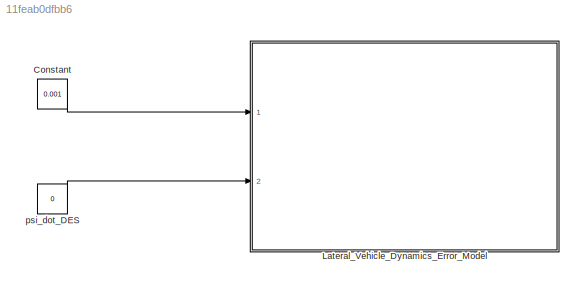
MODEL slx_11feab0dfbb6
KIND model
CONFIG AbsTol = auto
CONFIG EnableMultiTasking = off
CONFIG FixedStep = 0.01
CONFIG MaxStep = auto
CONFIG MinStep = auto
CONFIG RelTol = 1e-3
CONFIG SampleTimeConstraint = Unconstrained
CONFIG Solver = FixedStepAuto
CONFIG SolverName = FixedStepAuto
CONFIG StartTime = 0.0
CONFIG StopTime = 1000
BLOCK [Constant] Constant
  Value = 0.001
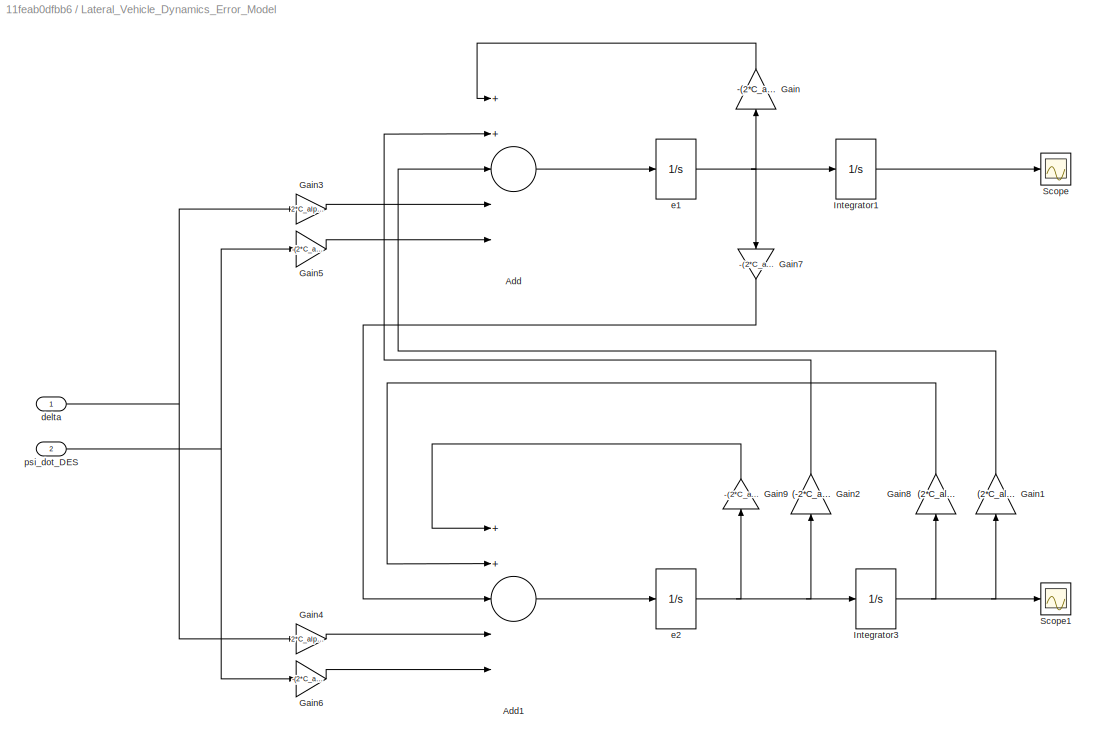
BLOCK [SubSystem] Lateral_Vehicle_Dynamics_Error_Model
  Ports = [2]
  RequestExecContextInheritance = off
BLOCK [Sum] Lateral_Vehicle_Dynamics_Error_Model/Add
  InputSameDT = off
  Inputs = 5
  OutDataTypeStr = Inherit: Inherit via internal rule
  Ports = [5, 1]
  SaturateOnIntegerOverflow = off
BLOCK [Sum] Lateral_Vehicle_Dynamics_Error_Model/Add1
  InputSameDT = off
  Inputs = 5
  OutDataTypeStr = Inherit: Inherit via internal rule
  Ports = [5, 1]
  SaturateOnIntegerOverflow = off
BLOCK [Gain] Lateral_Vehicle_Dynamics_Error_Model/Gain
  Gain = -(2*C_alpha_f + 2*C_alpha_r)/(m*Vx)
  OutDataTypeStr = Inherit: Inherit via internal rule
  ParamDataTypeStr = Inherit: Inherit via internal rule
  SaturateOnIntegerOverflow = off
BLOCK [Gain] Lateral_Vehicle_Dynamics_Error_Model/Gain1
  Gain = (2*C_alpha_f + 2*C_alpha_r)/(m)
  OutDataTypeStr = Inherit: Inherit via internal rule
  ParamDataTypeStr = Inherit: Inherit via internal rule
  SaturateOnIntegerOverflow = off
BLOCK [Gain] Lateral_Vehicle_Dynamics_Error_Model/Gain2
  Gain = (-2*C_alpha_f*l_f + 2*C_alpha_r*l_r)/(m*Vx)
  OutDataTypeStr = Inherit: Inherit via internal rule
  ParamDataTypeStr = Inherit: Inherit via internal rule
  SaturateOnIntegerOverflow = off
BLOCK [Gain] Lateral_Vehicle_Dynamics_Error_Model/Gain3
  Gain = 2*C_alpha_f/m
  OutDataTypeStr = Inherit: Inherit via internal rule
  ParamDataTypeStr = Inherit: Inherit via internal rule
  SaturateOnIntegerOverflow = off
BLOCK [Gain] Lateral_Vehicle_Dynamics_Error_Model/Gain4
  Gain = 2*C_alpha_f*l_f/Izz
  OutDataTypeStr = Inherit: Inherit via internal rule
  ParamDataTypeStr = Inherit: Inherit via internal rule
  SaturateOnIntegerOverflow = off
BLOCK [Gain] Lateral_Vehicle_Dynamics_Error_Model/Gain5
  Gain = -(2*C_alpha_f *l_f - 2*C_alpha_r*l_r)/(m*Vx) - Vx
  OutDataTypeStr = Inherit: Inherit via internal rule
  ParamDataTypeStr = Inherit: Inherit via internal rule
  SaturateOnIntegerOverflow = off
BLOCK [Gain] Lateral_Vehicle_Dynamics_Error_Model/Gain6
  Gain = -(2*C_alpha_f *l_f*l_f+ 2*C_alpha_r*l_r*l_r)/(Izz*Vx)
  OutDataTypeStr = Inherit: Inherit via internal rule
  ParamDataTypeStr = Inherit: Inherit via internal rule
  SaturateOnIntegerOverflow = off
BLOCK [Gain] Lateral_Vehicle_Dynamics_Error_Model/Gain7
  Gain = -(2*C_alpha_f *l_f - 2*C_alpha_r*l_r)/(Izz*Vx)
  OutDataTypeStr = Inherit: Inherit via internal rule
  ParamDataTypeStr = Inherit: Inherit via internal rule
  SaturateOnIntegerOverflow = off
BLOCK [Gain] Lateral_Vehicle_Dynamics_Error_Model/Gain8
  Gain = (2*C_alpha_f*l_f - 2*C_alpha_r*l_r)/(Izz)
  OutDataTypeStr = Inherit: Inherit via internal rule
  ParamDataTypeStr = Inherit: Inherit via internal rule
  SaturateOnIntegerOverflow = off
BLOCK [Gain] Lateral_Vehicle_Dynamics_Error_Model/Gain9
  Gain = -(2*C_alpha_f *l_f*l_f+ 2*C_alpha_r*l_r*l_r)/(Izz*Vx)
  OutDataTypeStr = Inherit: Inherit via internal rule
  ParamDataTypeStr = Inherit: Inherit via internal rule
  SaturateOnIntegerOverflow = off
BLOCK [Integrator] Lateral_Vehicle_Dynamics_Error_Model/Integrator1
  Ports = [1, 1]
BLOCK [Integrator] Lateral_Vehicle_Dynamics_Error_Model/Integrator3
  Ports = [1, 1]
BLOCK [Scope] Lateral_Vehicle_Dynamics_Error_Model/Scope
  Floating = off
  NumInputPorts = 1
  Ports = [1]
  ScopeSpecificationString = Simulink.scopes.TimeScopeBlockCfg('CurrentConfiguration', extmgr.ConfigurationSet(extmgr.Configuration('Core','General UI',true),extmgr.Configuration('Core','Source UI',true),extmgr.Configuration('Sources','WiredSimulink',true),extmgr.Configuration('Visuals','Time Domain',true,'SerializedDisplays',{struct('MinYLimReal','-0.0007','MaxYLimReal','0.00026','YLabelReal','','MinYLimMag','0.00000','MaxYL...<+1411ch>
BLOCK [Scope] Lateral_Vehicle_Dynamics_Error_Model/Scope1
  Floating = off
  NumInputPorts = 1
  Ports = [1]
  ScopeSpecificationString = Simulink.scopes.TimeScopeBlockCfg('CurrentConfiguration', extmgr.ConfigurationSet(extmgr.Configuration('Core','General UI',true),extmgr.Configuration('Core','Source UI',true),extmgr.Configuration('Sources','WiredSimulink',true,'DataLoggingVariableName','ScopeData1'),extmgr.Configuration('Visuals','Time Domain',true,'SerializedDisplays',{struct('MinYLimReal','-11.24695','MaxYLimReal','1.24966','YLa...<+1414ch>
BLOCK [Inport] Lateral_Vehicle_Dynamics_Error_Model/delta
  IconDisplay = Port number
BLOCK [Integrator] Lateral_Vehicle_Dynamics_Error_Model/e1
  Ports = [1, 1]
BLOCK [Integrator] Lateral_Vehicle_Dynamics_Error_Model/e2
  Ports = [1, 1]
BLOCK [Inport] Lateral_Vehicle_Dynamics_Error_Model/psi_dot_DES
  IconDisplay = Port number
  Port = 2
BLOCK [Constant] psi_dot_DES 
  Value = 0
LINE Constant:1 -> Lateral_Vehicle_Dynamics_Error_Model:1
LINE Lateral_Vehicle_Dynamics_Error_Model/Add1:1 -> Lateral_Vehicle_Dynamics_Error_Model/e2:1
LINE Lateral_Vehicle_Dynamics_Error_Model/Add:1 -> Lateral_Vehicle_Dynamics_Error_Model/e1:1
LINE Lateral_Vehicle_Dynamics_Error_Model/Gain1:1 -> Lateral_Vehicle_Dynamics_Error_Model/Add:3
LINE Lateral_Vehicle_Dynamics_Error_Model/Gain2:1 -> Lateral_Vehicle_Dynamics_Error_Model/Add:2
LINE Lateral_Vehicle_Dynamics_Error_Model/Gain3:1 -> Lateral_Vehicle_Dynamics_Error_Model/Add:4
LINE Lateral_Vehicle_Dynamics_Error_Model/Gain4:1 -> Lateral_Vehicle_Dynamics_Error_Model/Add1:4
LINE Lateral_Vehicle_Dynamics_Error_Model/Gain5:1 -> Lateral_Vehicle_Dynamics_Error_Model/Add:5
LINE Lateral_Vehicle_Dynamics_Error_Model/Gain6:1 -> Lateral_Vehicle_Dynamics_Error_Model/Add1:5
LINE Lateral_Vehicle_Dynamics_Error_Model/Gain7:1 -> Lateral_Vehicle_Dynamics_Error_Model/Add1:3
LINE Lateral_Vehicle_Dynamics_Error_Model/Gain8:1 -> Lateral_Vehicle_Dynamics_Error_Model/Add1:2
LINE Lateral_Vehicle_Dynamics_Error_Model/Gain9:1 -> Lateral_Vehicle_Dynamics_Error_Model/Add1:1
LINE Lateral_Vehicle_Dynamics_Error_Model/Gain:1 -> Lateral_Vehicle_Dynamics_Error_Model/Add:1
LINE Lateral_Vehicle_Dynamics_Error_Model/Integrator1:1 -> Lateral_Vehicle_Dynamics_Error_Model/Scope:1
NET Lateral_Vehicle_Dynamics_Error_Model/Integrator3:1 -> Lateral_Vehicle_Dynamics_Error_Model/Gain1:1, Lateral_Vehicle_Dynamics_Error_Model/Gain8:1, Lateral_Vehicle_Dynamics_Error_Model/Scope1:1
NET Lateral_Vehicle_Dynamics_Error_Model/delta:1 -> Lateral_Vehicle_Dynamics_Error_Model/Gain3:1, Lateral_Vehicle_Dynamics_Error_Model/Gain4:1
NET Lateral_Vehicle_Dynamics_Error_Model/e1:1 -> Lateral_Vehicle_Dynamics_Error_Model/Gain7:1, Lateral_Vehicle_Dynamics_Error_Model/Gain:1, Lateral_Vehicle_Dynamics_Error_Model/Integrator1:1
NET Lateral_Vehicle_Dynamics_Error_Model/e2:1 -> Lateral_Vehicle_Dynamics_Error_Model/Gain2:1, Lateral_Vehicle_Dynamics_Error_Model/Gain9:1, Lateral_Vehicle_Dynamics_Error_Model/Integrator3:1
NET Lateral_Vehicle_Dynamics_Error_Model/psi_dot_DES:1 -> Lateral_Vehicle_Dynamics_Error_Model/Gain5:1, Lateral_Vehicle_Dynamics_Error_Model/Gain6:1
LINE psi_dot_DES :1 -> Lateral_Vehicle_Dynamics_Error_Model:2
note: NET lines group one-source signal fan-out (src -> all destinations, sorted); 1:1 wires keep LINE
